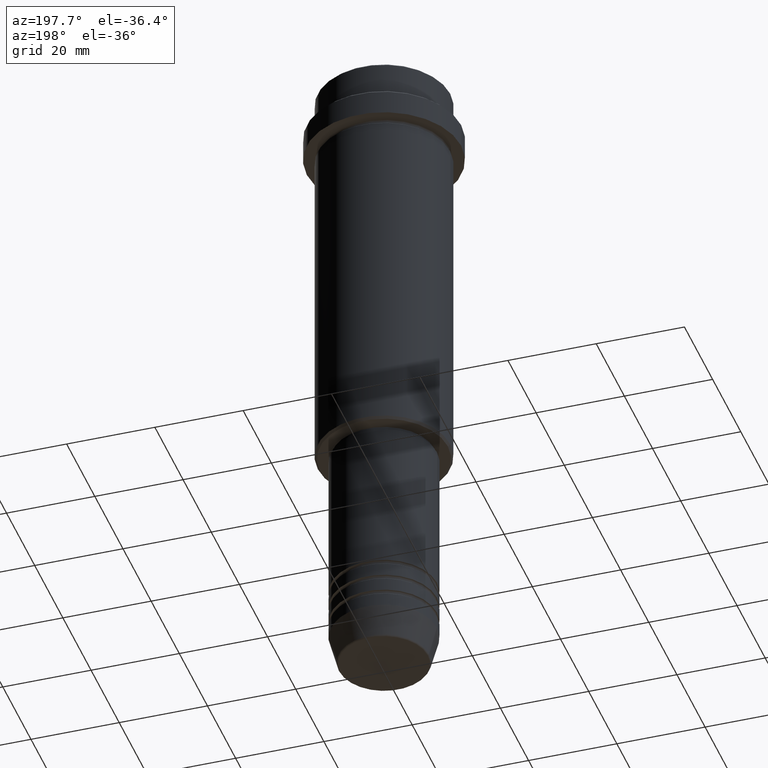
[diagram: clean part render]
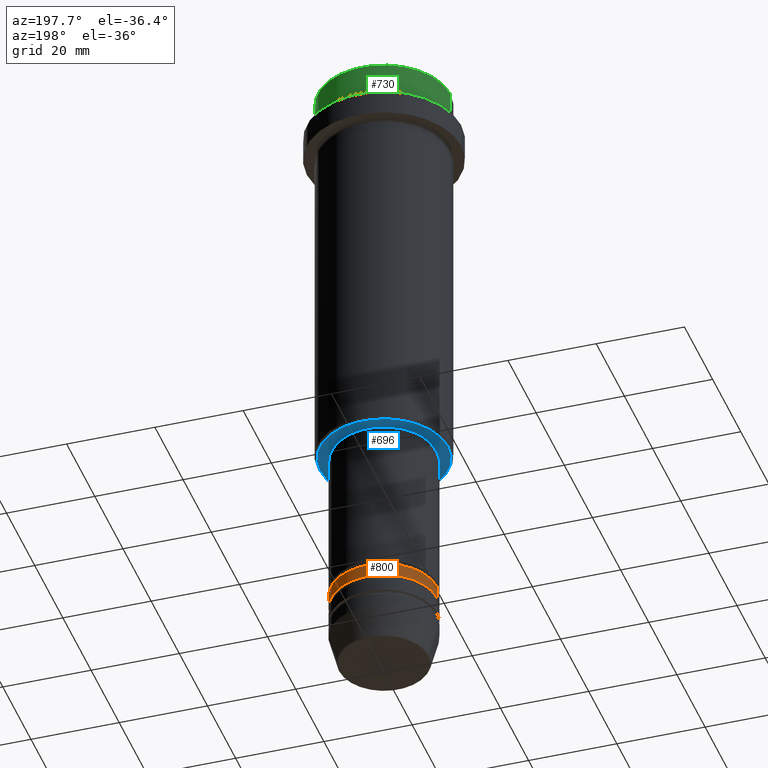
[diagram: same view with three faces highlighted in distinct colors, each labeled with its STEP entity id]
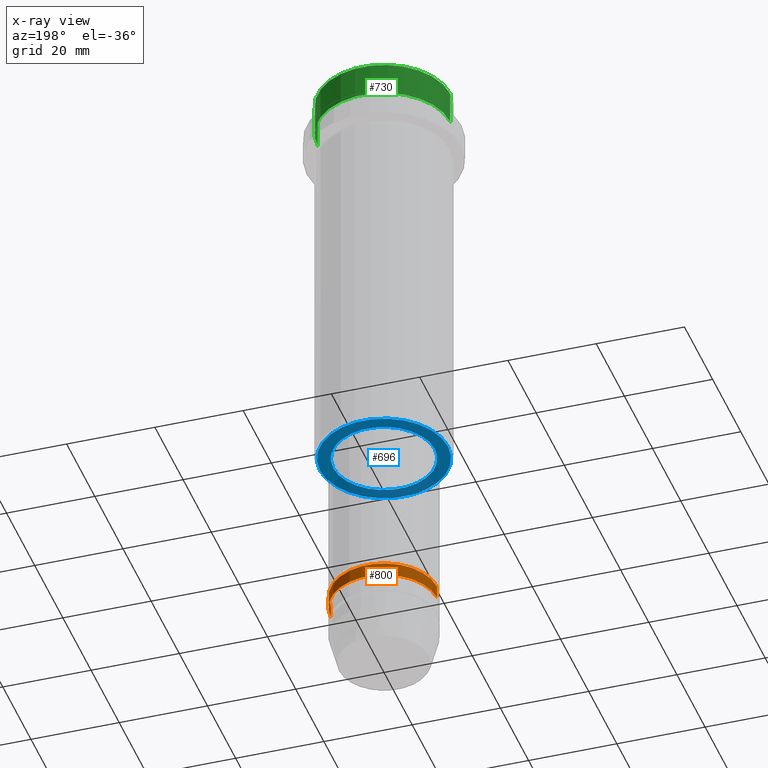
[diagram: x-ray of the same camera — body ghosted, the three highlighted faces saturated]
A machine part, auxiliary view with three faces highlighted in distinct colors.
The next image is the same camera in x-ray (body ghosted, the three faces saturated) — at least one of them is partly hidden behind the body in this view.
Their STEP definitions:

[orange] entity #800 — the highlighted cylindrical surface (partial cylindrical patch) has radius 12 mm, axis along (-0, -0, 1).
#4 = DIRECTION ( 'NONE',  ( -0.000000000000000000, -0.000000000000000000, 1.000000000000000000 ) ) ;
#20 = DIRECTION ( 'NONE',  ( 1.000000000000000000, 0.000000000000000000, 0.000000000000000000 ) ) ;
#26 = ORIENTED_EDGE ( 'NONE', *, *, #779, .F. ) ;
#96 = CARTESIAN_POINT ( 'NONE',  ( 0.000000000000000000, 0.000000000000000000, -131.9999999999998863 ) ) ;
#121 = FACE_OUTER_BOUND ( 'NONE', #886, .T. ) ;
#183 = VERTEX_POINT ( 'NONE', #759 ) ;
#230 = DIRECTION ( 'NONE',  ( 1.000000000000000000, 0.000000000000000000, 0.000000000000000000 ) ) ;
#236 = EDGE_CURVE ( 'NONE', #183, #1117, #917, .T. ) ;
#239 = CARTESIAN_POINT ( 'NONE',  ( -12.00000000000000000, 1.469576158976823947E-15, 0.000000000000000000 ) ) ;
#242 = DIRECTION ( 'NONE',  ( -0.000000000000000000, -0.000000000000000000, 1.000000000000000000 ) ) ;
#272 = CARTESIAN_POINT ( 'NONE',  ( 12.00000000000000000, 0.000000000000000000, -131.9999999999998863 ) ) ;
#278 = EDGE_CURVE ( 'NONE', #908, #1301, #1151, .T. ) ;
#338 = CYLINDRICAL_SURFACE ( 'NONE', #1220, 12.00000000000000000 ) ;
#450 = DIRECTION ( 'NONE',  ( 1.000000000000000000, 0.000000000000000000, 0.000000000000000000 ) ) ;
#470 = AXIS2_PLACEMENT_3D ( 'NONE', #562, #4, #450 ) ;
#510 = ORIENTED_EDGE ( 'NONE', *, *, #735, .T. ) ;
#548 = LINE ( 'NONE', #1406, #645 ) ;
#562 = CARTESIAN_POINT ( 'NONE',  ( 0.000000000000000000, 0.000000000000000000, -134.9999999999998863 ) ) ;
#645 = VECTOR ( 'NONE', #654, 1000.000000000000000 ) ;
#654 = DIRECTION ( 'NONE',  ( -0.000000000000000000, -0.000000000000000000, 1.000000000000000000 ) ) ;
#674 = LINE ( 'NONE', #239, #868 ) ;
#735 = EDGE_CURVE ( 'NONE', #1117, #1301, #674, .T. ) ;
#759 = CARTESIAN_POINT ( 'NONE',  ( 12.00000000000000000, 0.000000000000000000, -134.9999999999998863 ) ) ;
#769 = ORIENTED_EDGE ( 'NONE', *, *, #236, .T. ) ;
#779 = EDGE_CURVE ( 'NONE', #183, #908, #548, .T. ) ;
#800 = ADVANCED_FACE ( 'NONE', ( #121 ), #338, .T. ) ;
#828 = CARTESIAN_POINT ( 'NONE',  ( -12.00000000000000000, 1.469576158976823947E-15, -131.9999999999998863 ) ) ;
#868 = VECTOR ( 'NONE', #1313, 1000.000000000000000 ) ;
#881 = CARTESIAN_POINT ( 'NONE',  ( -12.00000000000000000, 1.469576158976823947E-15, -134.9999999999998863 ) ) ;
#886 = EDGE_LOOP ( 'NONE', ( #769, #510, #1350, #26 ) ) ;
#908 = VERTEX_POINT ( 'NONE', #272 ) ;
#917 = CIRCLE ( 'NONE', #470, 12.00000000000000000 ) ;
#941 = AXIS2_PLACEMENT_3D ( 'NONE', #96, #242, #20 ) ;
#1117 = VERTEX_POINT ( 'NONE', #881 ) ;
#1151 = CIRCLE ( 'NONE', #941, 12.00000000000000000 ) ;
#1182 = DIRECTION ( 'NONE',  ( -0.000000000000000000, -0.000000000000000000, 1.000000000000000000 ) ) ;
#1220 = AXIS2_PLACEMENT_3D ( 'NONE', #1273, #1182, #230 ) ;
#1273 = CARTESIAN_POINT ( 'NONE',  ( 0.000000000000000000, 0.000000000000000000, 0.000000000000000000 ) ) ;
#1301 = VERTEX_POINT ( 'NONE', #828 ) ;
#1313 = DIRECTION ( 'NONE',  ( -0.000000000000000000, -0.000000000000000000, 1.000000000000000000 ) ) ;
#1350 = ORIENTED_EDGE ( 'NONE', *, *, #278, .F. ) ;
#1406 = CARTESIAN_POINT ( 'NONE',  ( 12.00000000000000000, 0.000000000000000000, 0.000000000000000000 ) ) ;

[blue] entity #696 — the highlighted planar face has unit normal (0, 0, -1).
#12 = FACE_OUTER_BOUND ( 'NONE', #1041, .T. ) ;
#15 = CARTESIAN_POINT ( 'NONE',  ( 0.000000000000000000, 0.000000000000000000, -95.00000000000000000 ) ) ;
#23 = AXIS2_PLACEMENT_3D ( 'NONE', #1291, #1184, #234 ) ;
#41 = DIRECTION ( 'NONE',  ( -1.000000000000000000, 0.000000000000000000, 0.000000000000000000 ) ) ;
#55 = CARTESIAN_POINT ( 'NONE',  ( 0.000000000000000000, 0.000000000000000000, -95.00000000000000000 ) ) ;
#100 = EDGE_LOOP ( 'NONE', ( #1368, #1047 ) ) ;
#111 = CARTESIAN_POINT ( 'NONE',  ( 14.49999999999999645, 0.000000000000000000, -95.00000000000000000 ) ) ;
#140 = EDGE_CURVE ( 'NONE', #816, #985, #293, .T. ) ;
#234 = DIRECTION ( 'NONE',  ( -1.000000000000000000, 0.000000000000000000, -0.000000000000000000 ) ) ;
#293 = CIRCLE ( 'NONE', #1249, 14.49999999999999645 ) ;
#342 = FACE_BOUND ( 'NONE', #100, .T. ) ;
#370 = DIRECTION ( 'NONE',  ( 1.000000000000000000, 0.000000000000000000, 0.000000000000000000 ) ) ;
#410 = VERTEX_POINT ( 'NONE', #1349 ) ;
#446 = CARTESIAN_POINT ( 'NONE',  ( 0.000000000000000000, 0.000000000000000000, -95.00000000000000000 ) ) ;
#541 = ORIENTED_EDGE ( 'NONE', *, *, #140, .T. ) ;
#556 = AXIS2_PLACEMENT_3D ( 'NONE', #446, #969, #762 ) ;
#567 = CARTESIAN_POINT ( 'NONE',  ( -14.49999999999999645, 1.806354028742345802E-15, -95.00000000000000000 ) ) ;
#599 = AXIS2_PLACEMENT_3D ( 'NONE', #15, #1217, #370 ) ;
#693 = CARTESIAN_POINT ( 'NONE',  ( 0.000000000000000000, 0.000000000000000000, -95.00000000000000000 ) ) ;
#696 = ADVANCED_FACE ( 'NONE', ( #12, #342 ), #1283, .T. ) ;
#762 = DIRECTION ( 'NONE',  ( 1.000000000000000000, 0.000000000000000000, 0.000000000000000000 ) ) ;
#780 = DIRECTION ( 'NONE',  ( 0.000000000000000000, 0.000000000000000000, -1.000000000000000000 ) ) ;
#816 = VERTEX_POINT ( 'NONE', #111 ) ;
#866 = ORIENTED_EDGE ( 'NONE', *, *, #1079, .T. ) ;
#927 = DIRECTION ( 'NONE',  ( 0.000000000000000000, 0.000000000000000000, -1.000000000000000000 ) ) ;
#961 = EDGE_CURVE ( 'NONE', #410, #1070, #1148, .T. ) ;
#969 = DIRECTION ( 'NONE',  ( -0.000000000000000000, -0.000000000000000000, 1.000000000000000000 ) ) ;
#985 = VERTEX_POINT ( 'NONE', #567 ) ;
#1000 = CARTESIAN_POINT ( 'NONE',  ( -11.49999999999999467, 1.408343819019455781E-15, -95.00000000000000000 ) ) ;
#1004 = AXIS2_PLACEMENT_3D ( 'NONE', #693, #780, #41 ) ;
#1023 = CIRCLE ( 'NONE', #599, 11.49999999999999467 ) ;
#1041 = EDGE_LOOP ( 'NONE', ( #541, #866 ) ) ;
#1047 = ORIENTED_EDGE ( 'NONE', *, *, #1053, .T. ) ;
#1053 = EDGE_CURVE ( 'NONE', #1070, #410, #1023, .T. ) ;
#1070 = VERTEX_POINT ( 'NONE', #1000 ) ;
#1079 = EDGE_CURVE ( 'NONE', #985, #816, #1412, .T. ) ;
#1148 = CIRCLE ( 'NONE', #556, 11.49999999999999467 ) ;
#1184 = DIRECTION ( 'NONE',  ( 0.000000000000000000, 0.000000000000000000, -1.000000000000000000 ) ) ;
#1217 = DIRECTION ( 'NONE',  ( -0.000000000000000000, -0.000000000000000000, 1.000000000000000000 ) ) ;
#1249 = AXIS2_PLACEMENT_3D ( 'NONE', #55, #927, #1357 ) ;
#1283 = PLANE ( 'NONE',  #23 ) ;
#1291 = CARTESIAN_POINT ( 'NONE',  ( 0.000000000000000000, 15.00000000000000000, -95.00000000000000000 ) ) ;
#1349 = CARTESIAN_POINT ( 'NONE',  ( 11.49999999999999467, 0.000000000000000000, -95.00000000000000000 ) ) ;
#1357 = DIRECTION ( 'NONE',  ( -1.000000000000000000, 0.000000000000000000, 0.000000000000000000 ) ) ;
#1368 = ORIENTED_EDGE ( 'NONE', *, *, #961, .T. ) ;
#1412 = CIRCLE ( 'NONE', #1004, 14.49999999999999645 ) ;

[green] entity #730 — the highlighted cylindrical surface (partial cylindrical patch) has radius 15 mm, axis along (-0, -0, 1).
#1 = DIRECTION ( 'NONE',  ( 1.000000000000000000, 0.000000000000000000, 0.000000000000000000 ) ) ;
#3 = EDGE_CURVE ( 'NONE', #998, #678, #190, .T. ) ;
#65 = EDGE_CURVE ( 'NONE', #678, #918, #1097, .T. ) ;
#102 = DIRECTION ( 'NONE',  ( 0.000000000000000000, 0.000000000000000000, -1.000000000000000000 ) ) ;
#106 = DIRECTION ( 'NONE',  ( 1.000000000000000000, 0.000000000000000000, 0.000000000000000000 ) ) ;
#126 = CARTESIAN_POINT ( 'NONE',  ( 15.00000000000000000, 0.000000000000000000, 0.000000000000000000 ) ) ;
#130 = VERTEX_POINT ( 'NONE', #195 ) ;
#190 = CIRCLE ( 'NONE', #665, 15.00000000000000000 ) ;
#195 = CARTESIAN_POINT ( 'NONE',  ( 15.00000000000000000, 0.000000000000000000, -0.4999999999999970024 ) ) ;
#211 = CARTESIAN_POINT ( 'NONE',  ( 0.000000000000000000, 0.000000000000000000, -7.999999999999998224 ) ) ;
#244 = LINE ( 'NONE', #126, #1178 ) ;
#358 = ORIENTED_EDGE ( 'NONE', *, *, #3, .T. ) ;
#362 = FACE_OUTER_BOUND ( 'NONE', #1218, .T. ) ;
#392 = ORIENTED_EDGE ( 'NONE', *, *, #569, .F. ) ;
#429 = DIRECTION ( 'NONE',  ( 1.000000000000000000, 0.000000000000000000, 0.000000000000000000 ) ) ;
#458 = DIRECTION ( 'NONE',  ( -0.000000000000000000, -0.000000000000000000, 1.000000000000000000 ) ) ;
#473 = CIRCLE ( 'NONE', #1254, 15.00000000000000000 ) ;
#569 = EDGE_CURVE ( 'NONE', #998, #130, #244, .T. ) ;
#576 = DIRECTION ( 'NONE',  ( -0.000000000000000000, -0.000000000000000000, 1.000000000000000000 ) ) ;
#598 = AXIS2_PLACEMENT_3D ( 'NONE', #978, #576, #1 ) ;
#636 = DIRECTION ( 'NONE',  ( -0.000000000000000000, -0.000000000000000000, 1.000000000000000000 ) ) ;
#665 = AXIS2_PLACEMENT_3D ( 'NONE', #211, #636, #429 ) ;
#678 = VERTEX_POINT ( 'NONE', #793 ) ;
#730 = ADVANCED_FACE ( 'NONE', ( #362 ), #1202, .T. ) ;
#771 = EDGE_CURVE ( 'NONE', #918, #130, #473, .T. ) ;
#793 = CARTESIAN_POINT ( 'NONE',  ( -15.00000000000000000, 1.836970198721029589E-15, -7.999999999999998224 ) ) ;
#812 = ORIENTED_EDGE ( 'NONE', *, *, #771, .T. ) ;
#813 = DIRECTION ( 'NONE',  ( -0.000000000000000000, -0.000000000000000000, 1.000000000000000000 ) ) ;
#884 = CARTESIAN_POINT ( 'NONE',  ( -15.00000000000000000, 1.836970198721029589E-15, 0.000000000000000000 ) ) ;
#918 = VERTEX_POINT ( 'NONE', #1136 ) ;
#978 = CARTESIAN_POINT ( 'NONE',  ( 0.000000000000000000, 0.000000000000000000, 0.000000000000000000 ) ) ;
#998 = VERTEX_POINT ( 'NONE', #1167 ) ;
#1097 = LINE ( 'NONE', #884, #1413 ) ;
#1136 = CARTESIAN_POINT ( 'NONE',  ( -15.00000000000000000, 1.836970198721029589E-15, -0.4999999999999970024 ) ) ;
#1167 = CARTESIAN_POINT ( 'NONE',  ( 15.00000000000000000, 0.000000000000000000, -7.999999999999998224 ) ) ;
#1178 = VECTOR ( 'NONE', #458, 1000.000000000000000 ) ;
#1202 = CYLINDRICAL_SURFACE ( 'NONE', #598, 15.00000000000000000 ) ;
#1203 = ORIENTED_EDGE ( 'NONE', *, *, #65, .T. ) ;
#1218 = EDGE_LOOP ( 'NONE', ( #358, #1203, #812, #392 ) ) ;
#1254 = AXIS2_PLACEMENT_3D ( 'NONE', #1407, #102, #106 ) ;
#1407 = CARTESIAN_POINT ( 'NONE',  ( 0.000000000000000000, 0.000000000000000000, -0.4999999999999970024 ) ) ;
#1413 = VECTOR ( 'NONE', #813, 1000.000000000000000 ) ;